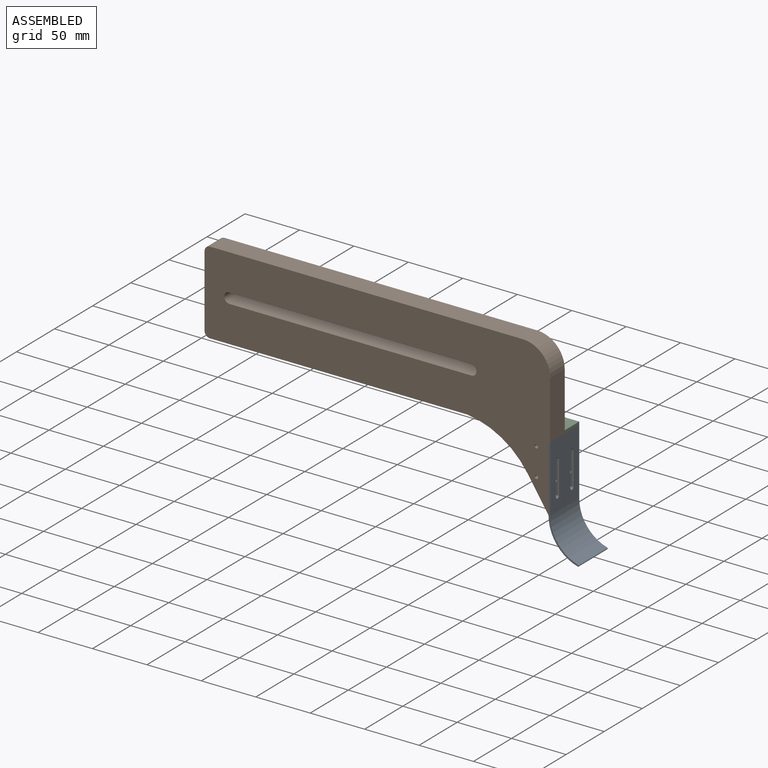
[diagram: assembled view]
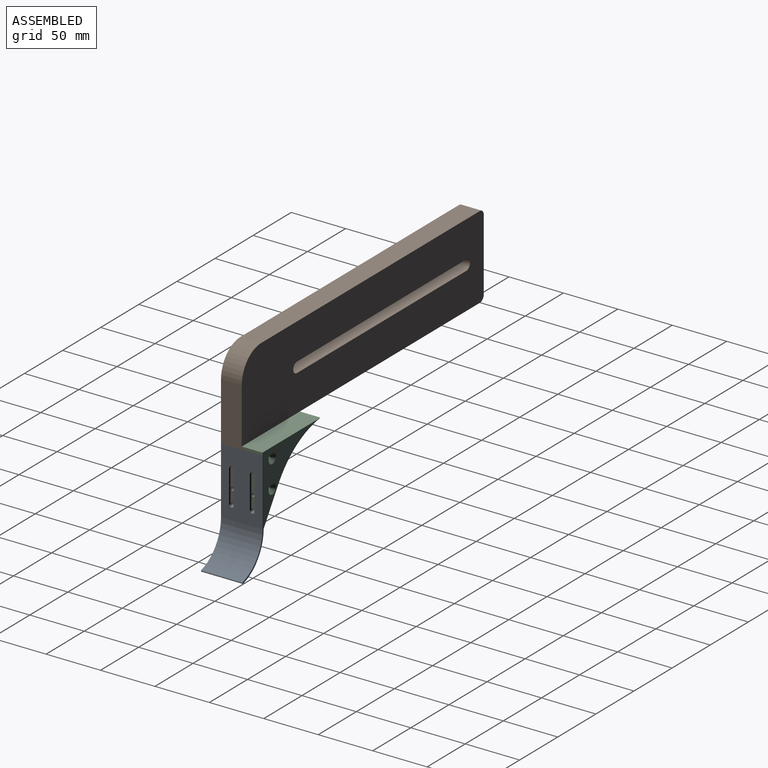
[diagram: assembled view, second angle]
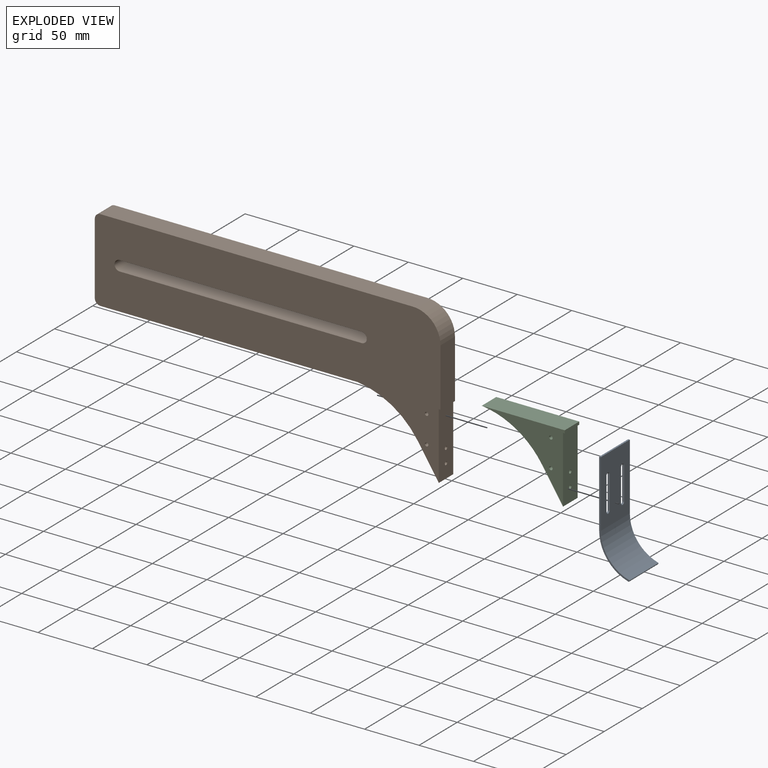
[diagram: exploded view]
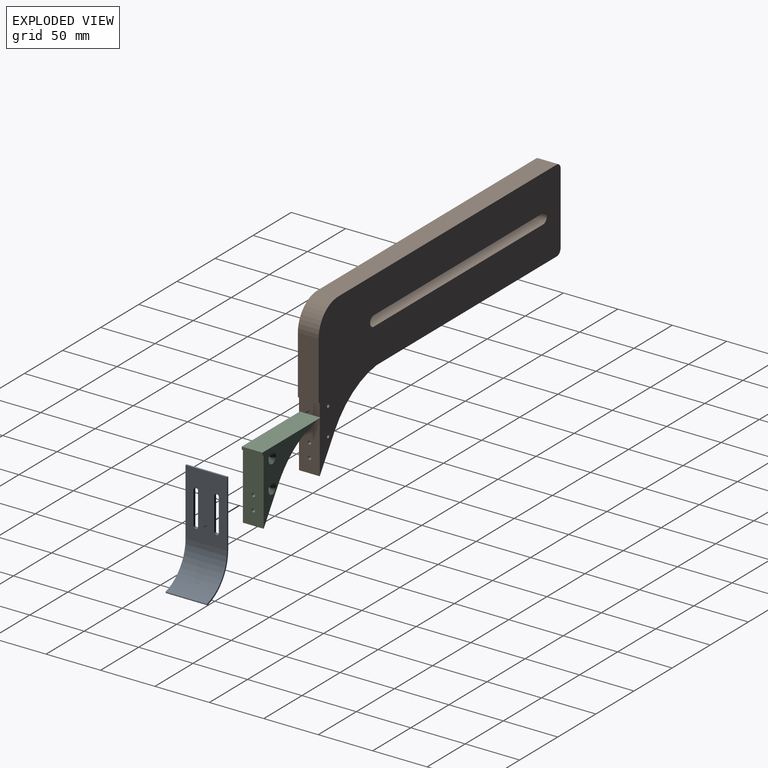
[diagram: exploded view, second angle]
ASSEMBLY  parts=3 mates=2
PART A: 24 faces, bbox 27.8x38.1x96.5 mm
  f0: plane 61.15x38.1mm, normal (1,0,0), area 2051.1mm2, adj f6,f7,f8,f9,f16,f17,f18,f19
  f1: plane 61.15x38.1mm, normal (-1,0,0), area 2123.8mm2, adj f2,f3,f4,f7,f8,f9,f10,f11
  f2: cylinder r=1.59mm len=3.18mm, axis (1,0,0), area 5.1mm2, adj f1,f11,f12,f18
  f3: cylinder r=1.59mm len=3.18mm, axis (1,0,0), area 5.1mm2, adj f1,f14,f15,f23
  f4: cylinder r=36.73mm len=38.1mm, axis (0,1,0), area 1815mm2, adj f1,f5,f8,f9
  f5: cylinder r=0.76mm len=38.1mm, axis (0,1,0), area 91.2mm2, adj f4,f6,f8,f9
  f6: cylinder r=35.2mm len=38.1mm, axis (0,1,0), area 1739.7mm2, adj f0,f5,f8,f9
  f7: plane 38.1x1.52mm, normal (0,0,1), area 58.1mm2, adj f0,f1,f8,f9
  f8: plane 96.54x27.77mm, normal (0,-1,0), area 165.2mm2, adj f0,f1,f4,f5,f6,f7
  f9: plane 96.54x27.77mm, normal (0,1,0), area 165.2mm2, adj f0,f1,f4,f5,f6,f7
  f10: cylinder r=1.59mm len=3.18mm, axis (1,0,0), area 5.1mm2, adj f1,f11,f12,f17
  f11: plane 29.97x1.02mm, normal (0,-1,0), area 30.5mm2, adj f1,f2,f10,f16
  f12: plane 29.97x1.02mm, normal (0,1,0), area 30.5mm2, adj f1,f2,f10,f19
  f13: cylinder r=1.59mm len=3.18mm, axis (1,0,0), area 5.1mm2, adj f1,f14,f15,f20
  f14: plane 29.97x1.02mm, normal (0,1,0), area 30.5mm2, adj f1,f3,f13,f21
  f15: plane 29.97x1.02mm, normal (0,-1,0), area 30.5mm2, adj f1,f3,f13,f22
  f16: plane 29.97x0.51mm, normal (0.71,-0.71,0), area 21.5mm2, adj f0,f11,f17,f18
  f17: cone r=2.1mm half-angle=45deg, axis (1,0,0), area 4.2mm2, adj f0,f10,f16,f19
  f18: cone r=1.59mm half-angle=45deg, axis (1,0,0), area 4.2mm2, adj f0,f2,f16,f19
  f19: plane 29.97x0.51mm, normal (0.71,0.71,0), area 21.5mm2, adj f0,f12,f17,f18
  f20: cone r=1.59mm half-angle=45deg, axis (1,0,0), area 4.2mm2, adj f0,f13,f21,f22
  f21: plane 29.97x0.51mm, normal (0.71,0.71,0), area 21.5mm2, adj f0,f14,f20,f23
  f22: plane 29.97x0.51mm, normal (0.71,-0.71,0), area 21.5mm2, adj f0,f15,f20,f23
  f23: cone r=1.59mm half-angle=45deg, axis (1,0,0), area 4.2mm2, adj f0,f3,f21,f22
PART B: 23 faces, bbox 317.5x19.1x140 mm
  f0: plane 29.61x19.23mm, normal (-0.84,0,-0.54), area 672.5mm2, adj f4,f10,f11,f18
  f1: cylinder r=4.76mm len=19.05mm, axis (0,1,0), area 285mm2, adj f2,f9,f10,f11
  f2: plane 222.25x19.05mm, normal (0,0,-1), area 4233.9mm2, adj f1,f3,f10,f11
  f3: cylinder r=4.76mm len=19.05mm, axis (0,1,0), area 285mm2, adj f2,f9,f10,f11
  f4: cylinder r=76.09mm len=55.45mm, axis (0,1,0), area 1282.4mm2, adj f0,f8,f10,f11
  f5: plane 53.44x19.05mm, normal (1,0,0), area 1018mm2, adj f10,f11,f14,f17
  f6: plane 287.02x19.05mm, normal (0,0,1), area 5467.7mm2, adj f10,f11,f12,f14
  f7: plane 66.04x19.05mm, normal (-1,0,0), area 1258.1mm2, adj f10,f11,f12,f13
  f8: plane 236.22x19.05mm, normal (0,0,-1), area 4500mm2, adj f4,f10,f11,f13
  f9: plane 222.25x19.05mm, normal (0,0,1), area 4233.9mm2, adj f1,f3,f10,f11
  f10: plane 317.5x139.99mm, normal (0,-1,0), area 23412.5mm2, adj f0,f1,f2,f3,f4,f5,f6,f7
  f11: plane 317.5x139.99mm, normal (0,1,0), area 23412.5mm2, adj f0,f1,f2,f3,f4,f5,f6,f7
  f12: cylinder r=5.08mm len=19.05mm, axis (0,-1,0), area 152mm2, adj f6,f7,f10,f11
  f13: cylinder r=5.08mm len=19.05mm, axis (0,1,0), area 152mm2, adj f7,f8,f10,f11
  f14: cylinder r=25.4mm len=25.4mm, axis (0,1,0), area 760.1mm2, adj f5,f6,f10,f11
  f15: cylinder r=1.59mm len=19.05mm, axis (0,1,0), area 190mm2, adj f10,f11
  f16: cylinder r=1.59mm len=19.05mm, axis (0,1,0), area 190mm2, adj f10,f11
  f17: plane 19.05x1.52mm, normal (0,0,-1), area 29mm2, adj f5,f10,f11,f18
  f18: plane 61.15x19.05mm, normal (1,0,0), area 1149.1mm2, adj f0,f10,f11,f17,f19,f21
  f19: cylinder r=1.59mm len=6.35mm, axis (1,0,0), area 63.3mm2, adj f18,f20
  f20: cone r=0mm half-angle=59deg, axis (1,0,0), area 9.2mm2, adj f19
  f21: cylinder r=1.59mm len=6.35mm, axis (1,0,0), area 63.3mm2, adj f18,f22
  f22: cone r=0mm half-angle=59deg, axis (1,0,0), area 9.2mm2, adj f21
PART C: 16 faces, bbox 76.2x19.1x63.8 mm
  f0: plane 19.05x2.64mm, normal (1,0,0), area 50.3mm2, adj f1,f4,f5,f10
  f1: plane 76.2x19.05mm, normal (0,0,1), area 1451.6mm2, adj f0,f3,f4,f5
  f2: plane 29.61x19.23mm, normal (-0.84,0,-0.54), area 672.5mm2, adj f3,f4,f5,f11
  f3: cylinder r=76.09mm len=55.45mm, axis (0,-1,0), area 1282.4mm2, adj f1,f2,f4,f5
  f4: plane 76.2x63.79mm, normal (0,1,0), area 1430mm2, adj f0,f1,f2,f3,f7,f9,f10,f11
  f5: plane 76.2x63.79mm, normal (0,-1,0), area 1556.7mm2, adj f0,f1,f2,f3,f6,f8,f10,f11
  f6: cylinder r=1.59mm len=15.88mm, axis (0,1,0), area 158.3mm2, adj f5,f7
  f7: cone r=1.59mm half-angle=45deg, axis (0,1,0), area 89.6mm2, adj f4,f6
  f8: cylinder r=1.59mm len=15.88mm, axis (0,1,0), area 158.3mm2, adj f5,f9
  f9: cone r=1.59mm half-angle=45deg, axis (0,1,0), area 89.6mm2, adj f4,f8
  f10: plane 19.05x1.52mm, normal (0,0,-1), area 29mm2, adj f0,f4,f5,f11
  f11: plane 61.15x19.05mm, normal (1,0,0), area 1149.1mm2, adj f2,f4,f5,f10,f12,f14
  f12: cylinder r=1.59mm len=6.35mm, axis (1,0,0), area 63.3mm2, adj f11,f13
  f13: cone r=0mm half-angle=59deg, axis (1,0,0), area 9.2mm2, adj f12
  f14: cylinder r=1.59mm len=6.35mm, axis (1,0,0), area 63.3mm2, adj f11,f15
  f15: cone r=0mm half-angle=59deg, axis (1,0,0), area 9.2mm2, adj f14
PLACE A t=(46.4,37.8,31.15)mm
PLACE B t=(46.4,37.8,31.15)mm
PLACE C t=(46.4,37.8,31.15)mm
MATE planar C.f5 <-> B.f11  axis (0,-1,0) through (195.73,37.8,-2.07)mm
MATE planar A.f1 <-> B.f18  axis (-1,0,0) through (195.73,37.8,28.51)mm
